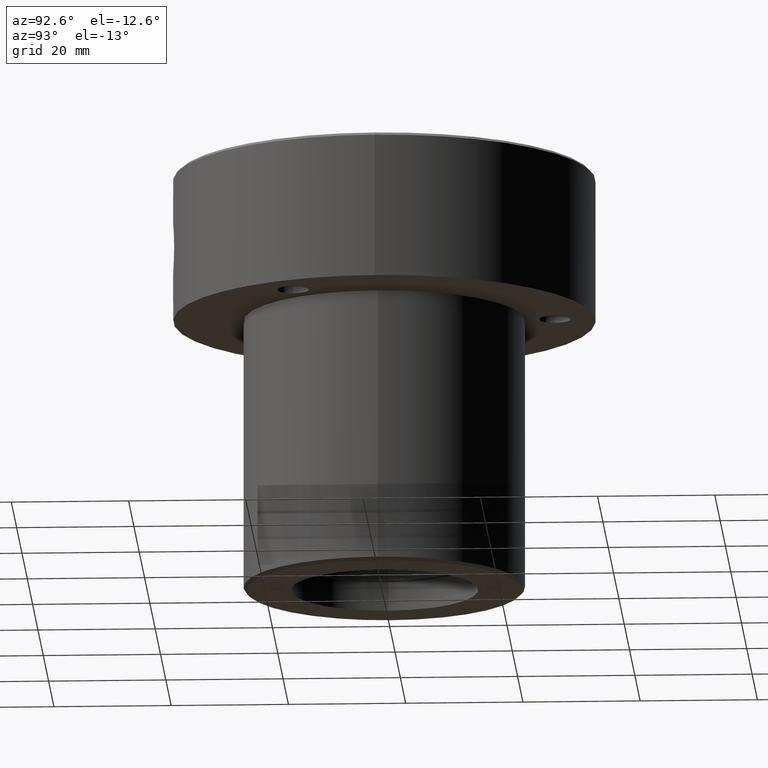
[diagram: clean part render]
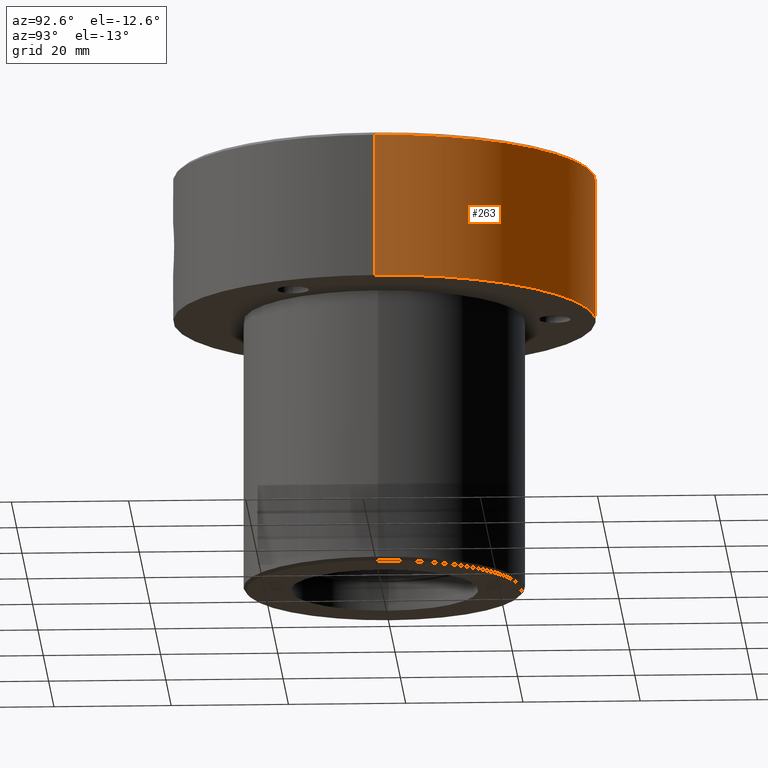
[diagram: same view with one face highlighted and labeled with its STEP entity id]
A machine part, auxiliary view. The second image highlights one B-rep face of the part: STEP entity #263.
In plain terms, the highlighted cylindrical surface (partial cylindrical patch) has radius 36 mm, axis along (-0, -0, 1).
Its self-contained STEP definition (entity closure, byte-faithful):
#9 = VECTOR ( 'NONE', #323, 1000.000000000000000 ) ;
#20 = EDGE_CURVE ( 'NONE', #541, #1099, #1016, .T. ) ;
#78 = VERTEX_POINT ( 'NONE', #570 ) ;
#139 = ORIENTED_EDGE ( 'NONE', *, *, #1051, .T. ) ;
#166 = EDGE_CURVE ( 'NONE', #1099, #78, #917, .T. ) ;
#205 = DIRECTION ( 'NONE',  ( 0.000000000000000000, 0.000000000000000000, -1.000000000000000000 ) ) ;
#254 = CIRCLE ( 'NONE', #954, 36.00000000000000000 ) ;
#263 = ADVANCED_FACE ( 'NONE', ( #632 ), #1210, .T. ) ;
#266 = DIRECTION ( 'NONE',  ( 1.000000000000000000, 0.000000000000000000, 0.000000000000000000 ) ) ;
#299 = CARTESIAN_POINT ( 'NONE',  ( 36.00000000000000000, 0.000000000000000000, -0.4999999999999796274 ) ) ;
#323 = DIRECTION ( 'NONE',  ( -0.000000000000000000, -0.000000000000000000, 1.000000000000000000 ) ) ;
#339 = DIRECTION ( 'NONE',  ( -0.000000000000000000, -0.000000000000000000, 1.000000000000000000 ) ) ;
#411 = AXIS2_PLACEMENT_3D ( 'NONE', #908, #339, #719 ) ;
#458 = CARTESIAN_POINT ( 'NONE',  ( -36.00000000000000000, 4.408728476930470856E-15, 0.000000000000000000 ) ) ;
#483 = AXIS2_PLACEMENT_3D ( 'NONE', #922, #827, #266 ) ;
#489 = EDGE_CURVE ( 'NONE', #541, #530, #777, .T. ) ;
#530 = VERTEX_POINT ( 'NONE', #299 ) ;
#541 = VERTEX_POINT ( 'NONE', #1213 ) ;
#570 = CARTESIAN_POINT ( 'NONE',  ( -36.00000000000000000, 4.408728476930470856E-15, -0.4999999999999796274 ) ) ;
#571 = ORIENTED_EDGE ( 'NONE', *, *, #166, .T. ) ;
#590 = CARTESIAN_POINT ( 'NONE',  ( -36.00000000000000000, 4.408728476930470856E-15, -24.99999999999999289 ) ) ;
#632 = FACE_OUTER_BOUND ( 'NONE', #1006, .T. ) ;
#719 = DIRECTION ( 'NONE',  ( 1.000000000000000000, 0.000000000000000000, 0.000000000000000000 ) ) ;
#777 = LINE ( 'NONE', #1086, #887 ) ;
#788 = DIRECTION ( 'NONE',  ( -0.000000000000000000, -0.000000000000000000, 1.000000000000000000 ) ) ;
#790 = DIRECTION ( 'NONE',  ( 1.000000000000000000, 0.000000000000000000, 0.000000000000000000 ) ) ;
#827 = DIRECTION ( 'NONE',  ( -0.000000000000000000, -0.000000000000000000, 1.000000000000000000 ) ) ;
#887 = VECTOR ( 'NONE', #788, 1000.000000000000000 ) ;
#908 = CARTESIAN_POINT ( 'NONE',  ( 0.000000000000000000, 0.000000000000000000, 0.000000000000000000 ) ) ;
#917 = LINE ( 'NONE', #458, #9 ) ;
#922 = CARTESIAN_POINT ( 'NONE',  ( 0.000000000000000000, 0.000000000000000000, -24.99999999999999289 ) ) ;
#954 = AXIS2_PLACEMENT_3D ( 'NONE', #964, #205, #790 ) ;
#964 = CARTESIAN_POINT ( 'NONE',  ( 0.000000000000000000, 0.000000000000000000, -0.4999999999999796274 ) ) ;
#1006 = EDGE_LOOP ( 'NONE', ( #1215, #571, #139, #1041 ) ) ;
#1016 = CIRCLE ( 'NONE', #483, 36.00000000000000000 ) ;
#1041 = ORIENTED_EDGE ( 'NONE', *, *, #489, .F. ) ;
#1051 = EDGE_CURVE ( 'NONE', #78, #530, #254, .T. ) ;
#1086 = CARTESIAN_POINT ( 'NONE',  ( 36.00000000000000000, 0.000000000000000000, 0.000000000000000000 ) ) ;
#1099 = VERTEX_POINT ( 'NONE', #590 ) ;
#1210 = CYLINDRICAL_SURFACE ( 'NONE', #411, 36.00000000000000000 ) ;
#1213 = CARTESIAN_POINT ( 'NONE',  ( 36.00000000000000000, 0.000000000000000000, -24.99999999999999289 ) ) ;
#1215 = ORIENTED_EDGE ( 'NONE', *, *, #20, .T. ) ;